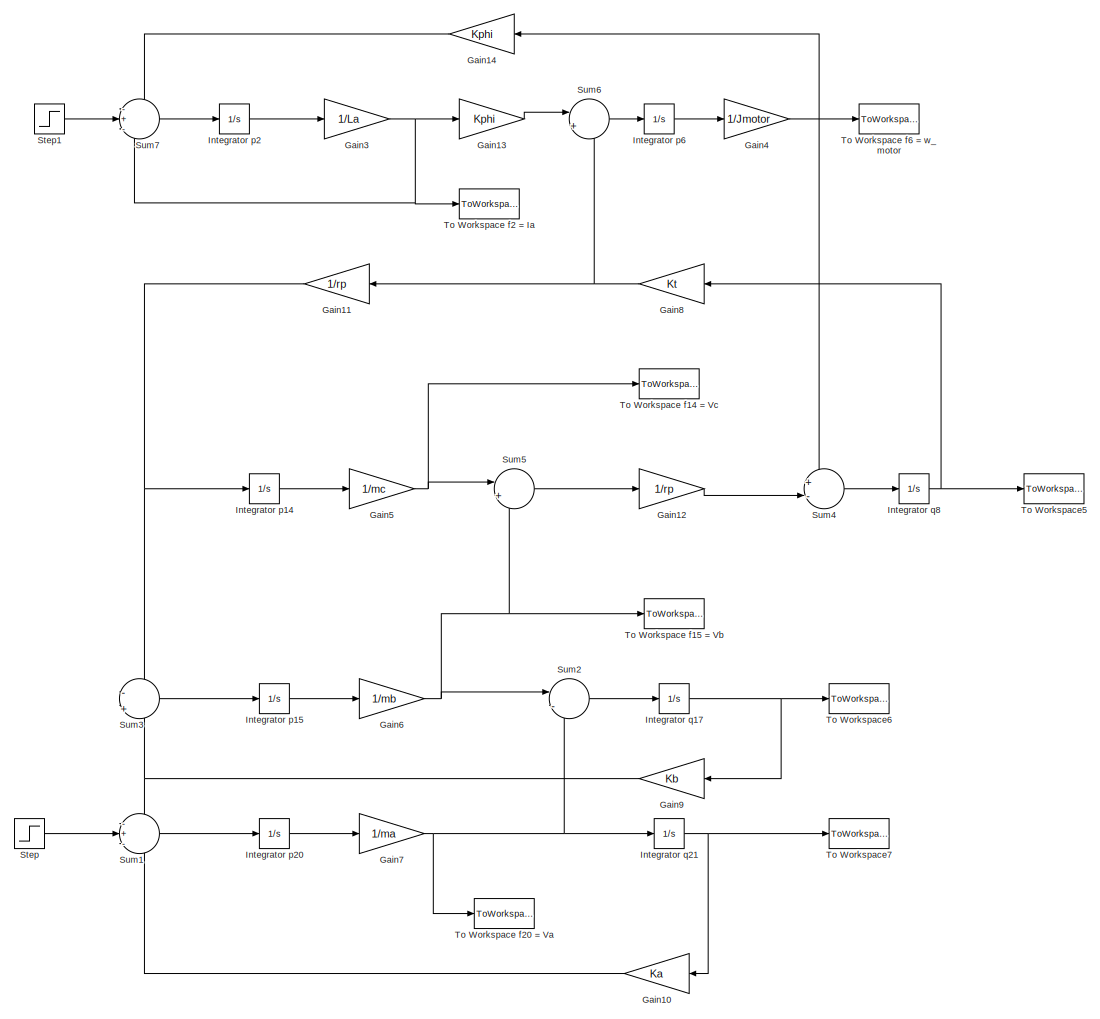
[diagram: root canvas - part 1/2, center side, full height]
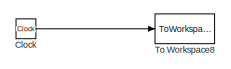
[diagram: root canvas - part 2/2, bottom left region]
MODEL slx_84dcfbbcd103
KIND model
BLOCK [Clock] Clock
BLOCK [Gain] Gain10
  Gain = Ka
  OutDataTypeStr = Inherit: Inherit via internal rule
  ParamDataTypeStr = Inherit: Inherit via internal rule
  SaturateOnIntegerOverflow = off
BLOCK [Gain] Gain11
  Gain = 1/rp
  OutDataTypeStr = Inherit: Inherit via internal rule
  ParamDataTypeStr = Inherit: Inherit via internal rule
  SaturateOnIntegerOverflow = off
BLOCK [Gain] Gain12
  Gain = 1/rp
  OutDataTypeStr = Inherit: Inherit via internal rule
  ParamDataTypeStr = Inherit: Inherit via internal rule
  SaturateOnIntegerOverflow = off
BLOCK [Gain] Gain13
  Gain = Kphi
  OutDataTypeStr = Inherit: Inherit via internal rule
  ParamDataTypeStr = Inherit: Inherit via internal rule
  SaturateOnIntegerOverflow = off
BLOCK [Gain] Gain14
  Gain = Kphi
  OutDataTypeStr = Inherit: Inherit via internal rule
  ParamDataTypeStr = Inherit: Inherit via internal rule
  SaturateOnIntegerOverflow = off
BLOCK [Gain] Gain3
  Gain = 1/La
  OutDataTypeStr = Inherit: Inherit via internal rule
  ParamDataTypeStr = Inherit: Inherit via internal rule
  SaturateOnIntegerOverflow = off
BLOCK [Gain] Gain4
  Gain = 1/Jmotor
  OutDataTypeStr = Inherit: Inherit via internal rule
  ParamDataTypeStr = Inherit: Inherit via internal rule
  SaturateOnIntegerOverflow = off
BLOCK [Gain] Gain5
  Gain = 1/mc
  OutDataTypeStr = Inherit: Inherit via internal rule
  ParamDataTypeStr = Inherit: Inherit via internal rule
  SaturateOnIntegerOverflow = off
BLOCK [Gain] Gain6
  Gain = 1/mb
  OutDataTypeStr = Inherit: Inherit via internal rule
  ParamDataTypeStr = Inherit: Inherit via internal rule
  SaturateOnIntegerOverflow = off
BLOCK [Gain] Gain7
  Gain = 1/ma
  OutDataTypeStr = Inherit: Inherit via internal rule
  ParamDataTypeStr = Inherit: Inherit via internal rule
  SaturateOnIntegerOverflow = off
BLOCK [Gain] Gain8
  Gain = Kt
  OutDataTypeStr = Inherit: Inherit via internal rule
  ParamDataTypeStr = Inherit: Inherit via internal rule
  SaturateOnIntegerOverflow = off
BLOCK [Gain] Gain9
  Gain = Kb
  OutDataTypeStr = Inherit: Inherit via internal rule
  ParamDataTypeStr = Inherit: Inherit via internal rule
  SaturateOnIntegerOverflow = off
BLOCK [Integrator] Integrator p14
  Ports = [1, 1]
BLOCK [Integrator] Integrator p15
  Ports = [1, 1]
BLOCK [Integrator] Integrator p2
  Ports = [1, 1]
BLOCK [Integrator] Integrator p20
  Ports = [1, 1]
BLOCK [Integrator] Integrator p6
  Ports = [1, 1]
BLOCK [Integrator] Integrator q17
  Ports = [1, 1]
BLOCK [Integrator] Integrator q21
  Ports = [1, 1]
BLOCK [Integrator] Integrator q8
  Ports = [1, 1]
BLOCK [Step] Step
  SampleTime = 0
BLOCK [Step] Step1
  SampleTime = 0
BLOCK [Sum] Sum1
  IconShape = round
  InputSameDT = off
  Inputs = -+-
  OutDataTypeStr = Inherit: Inherit via internal rule
  Ports = [3, 1]
  SaturateOnIntegerOverflow = off
BLOCK [Sum] Sum2
  IconShape = round
  InputSameDT = off
  Inputs = |-+
  OutDataTypeStr = Inherit: Inherit via internal rule
  Ports = [2, 1]
  SaturateOnIntegerOverflow = off
BLOCK [Sum] Sum3
  IconShape = round
  InputSameDT = off
  Inputs = -|+
  OutDataTypeStr = Inherit: Inherit via internal rule
  Ports = [2, 1]
  SaturateOnIntegerOverflow = off
BLOCK [Sum] Sum4
  IconShape = round
  InputSameDT = off
  Inputs = +-|
  OutDataTypeStr = Inherit: Inherit via internal rule
  Ports = [2, 1]
  SaturateOnIntegerOverflow = off
BLOCK [Sum] Sum5
  IconShape = round
  InputSameDT = off
  Inputs = |+-
  OutDataTypeStr = Inherit: Inherit via internal rule
  Ports = [2, 1]
  SaturateOnIntegerOverflow = off
BLOCK [Sum] Sum6
  IconShape = round
  InputSameDT = off
  Inputs = |+-
  OutDataTypeStr = Inherit: Inherit via internal rule
  Ports = [2, 1]
  SaturateOnIntegerOverflow = off
BLOCK [Sum] Sum7
  IconShape = round
  InputSameDT = off
  Inputs = -+-
  OutDataTypeStr = Inherit: Inherit via internal rule
  Ports = [3, 1]
  SaturateOnIntegerOverflow = off
BLOCK [ToWorkspace] To Workspace f14 = Vc
  FixptAsFi = on
  MaxDataPoints = inf
  Ports = [1]
  SampleTime = SampTime
  VariableName = Vc
BLOCK [ToWorkspace] To Workspace f15 = Vb
  FixptAsFi = on
  MaxDataPoints = inf
  Ports = [1]
  SampleTime = SampTime
  VariableName = Vb
BLOCK [ToWorkspace] To Workspace f2 = Ia
  FixptAsFi = on
  MaxDataPoints = inf
  Ports = [1]
  SampleTime = SampTime
  VariableName = Ia
BLOCK [ToWorkspace] To Workspace f20 = Va
  FixptAsFi = on
  MaxDataPoints = inf
  Ports = [1]
  SampleTime = SampTime
  VariableName = Va
BLOCK [ToWorkspace] To Workspace f6 = w_motor
  FixptAsFi = on
  MaxDataPoints = inf
  Ports = [1]
  SampleTime = SampTime
  VariableName = w_motor
BLOCK [ToWorkspace] To Workspace5
  FixptAsFi = on
  MaxDataPoints = inf
  Ports = [1]
  SampleTime = SampTime
  VariableName = q8
BLOCK [ToWorkspace] To Workspace6
  FixptAsFi = on
  MaxDataPoints = inf
  Ports = [1]
  SampleTime = SampTime
  VariableName = q17
BLOCK [ToWorkspace] To Workspace7
  FixptAsFi = on
  MaxDataPoints = inf
  Ports = [1]
  SampleTime = SampTime
  VariableName = q21
BLOCK [ToWorkspace] To Workspace8
  FixptAsFi = on
  MaxDataPoints = inf
  Ports = [1]
  SampleTime = SampTime
  VariableName = time
LINE Clock:1 -> To Workspace8:1
LINE Gain10:1 -> Sum1:3
NET Gain11:1 -> Integrator p14:1, Sum3:1
LINE Gain12:1 -> Sum4:2
LINE Gain13:1 -> Sum6:1
LINE Gain14:1 -> Sum7:1
NET Gain3:1 -> Gain13:1, Sum7:3, To Workspace f2 = Ia:1
NET Gain4:1 -> Gain14:1, Sum4:1, To Workspace f6 = w_motor:1
NET Gain5:1 -> Sum5:1, To Workspace f14 = Vc:1
NET Gain6:1 -> Sum2:1, Sum5:2, To Workspace f15 = Vb:1
NET Gain7:1 -> Integrator q21:1, Sum2:2, To Workspace f20 = Va:1
NET Gain8:1 -> Gain11:1, Sum6:2
NET Gain9:1 -> Sum1:1, Sum3:2
LINE Integrator p14:1 -> Gain5:1
LINE Integrator p15:1 -> Gain6:1
LINE Integrator p20:1 -> Gain7:1
LINE Integrator p2:1 -> Gain3:1
LINE Integrator p6:1 -> Gain4:1
NET Integrator q17:1 -> Gain9:1, To Workspace6:1
NET Integrator q21:1 -> Gain10:1, To Workspace7:1
NET Integrator q8:1 -> Gain8:1, To Workspace5:1
LINE Step1:1 -> Sum7:2
LINE Step:1 -> Sum1:2
LINE Sum1:1 -> Integrator p20:1
LINE Sum2:1 -> Integrator q17:1
LINE Sum3:1 -> Integrator p15:1
LINE Sum4:1 -> Integrator q8:1
LINE Sum5:1 -> Gain12:1
LINE Sum6:1 -> Integrator p6:1
LINE Sum7:1 -> Integrator p2:1
note: NET lines group one-source signal fan-out (src -> all destinations, sorted); 1:1 wires keep LINE
